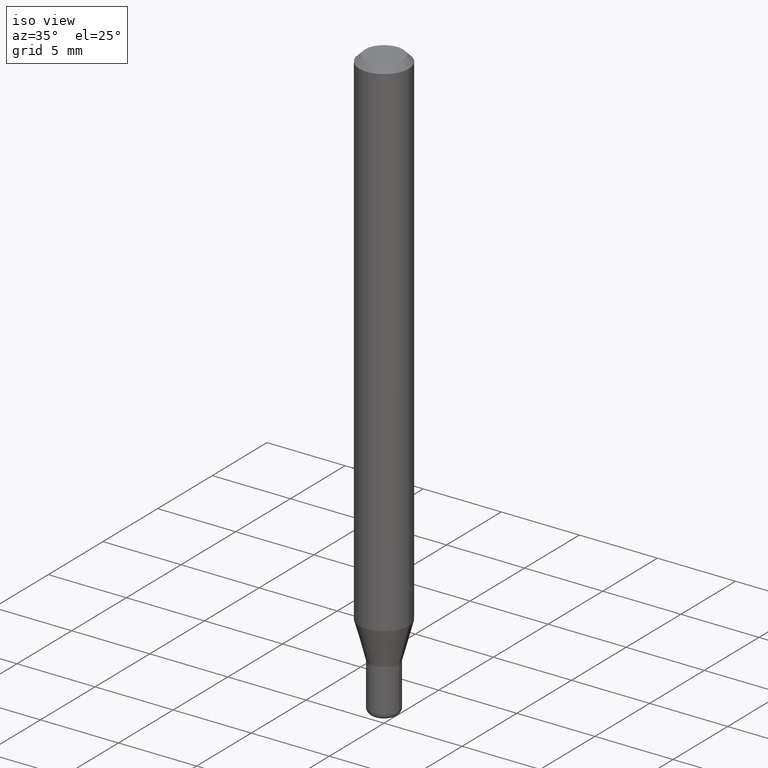
[diagram: clean part render]
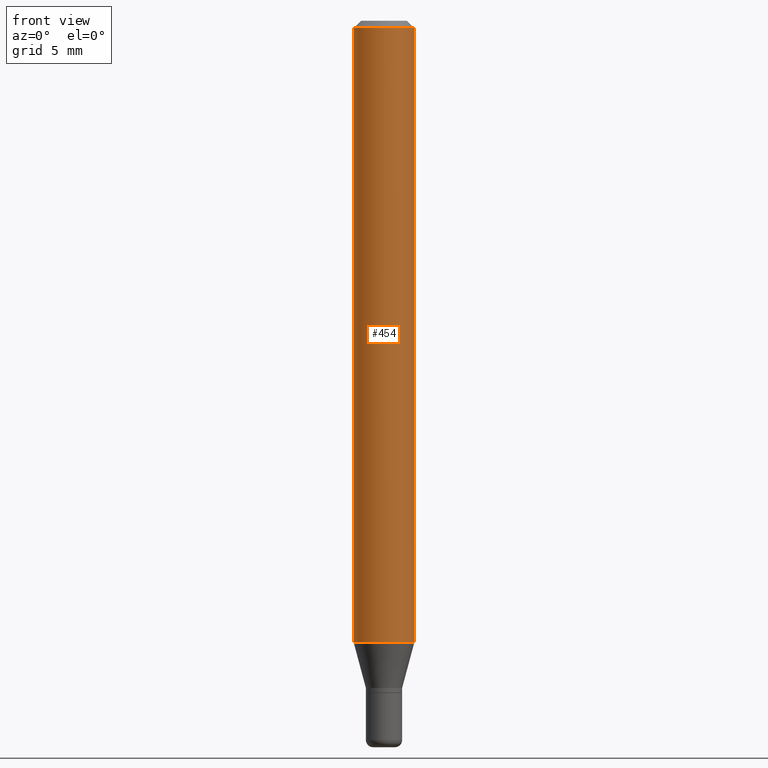
[diagram: tour spotlight — one face highlighted and labeled with its STEP entity id]
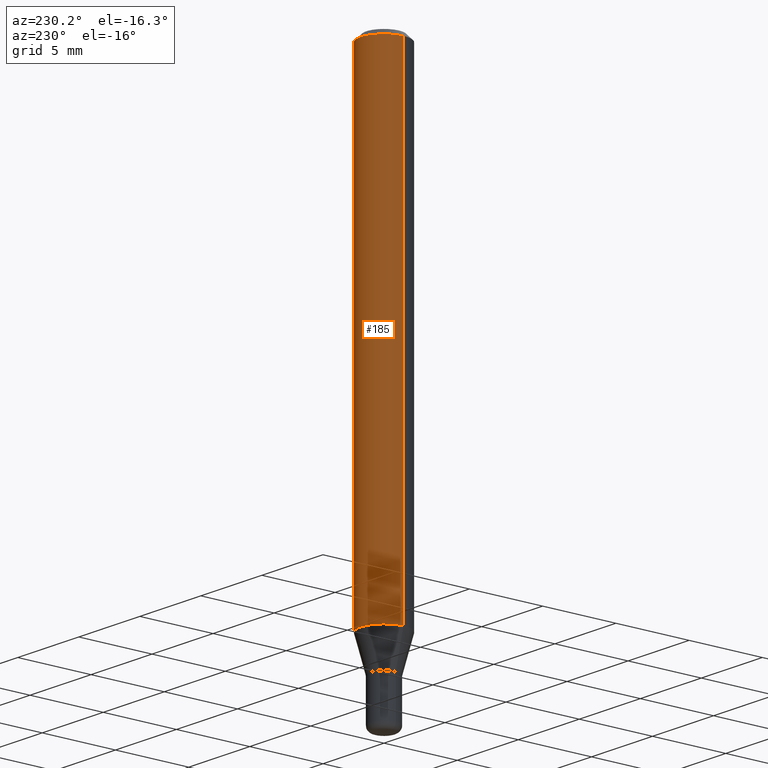
[diagram: tour spotlight — one face highlighted and labeled with its STEP entity id]
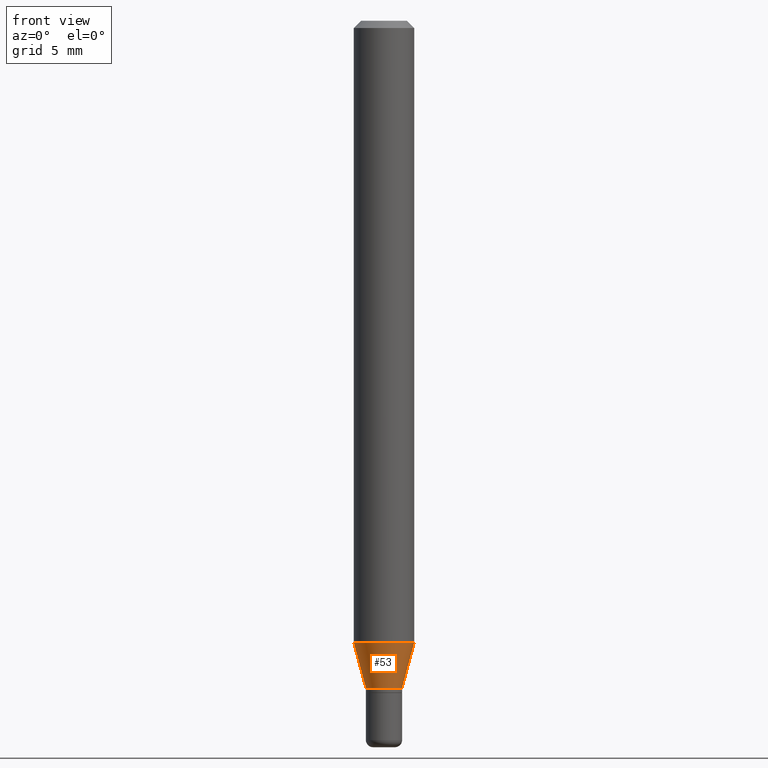
[diagram: tour spotlight — one face highlighted and labeled with its STEP entity id]
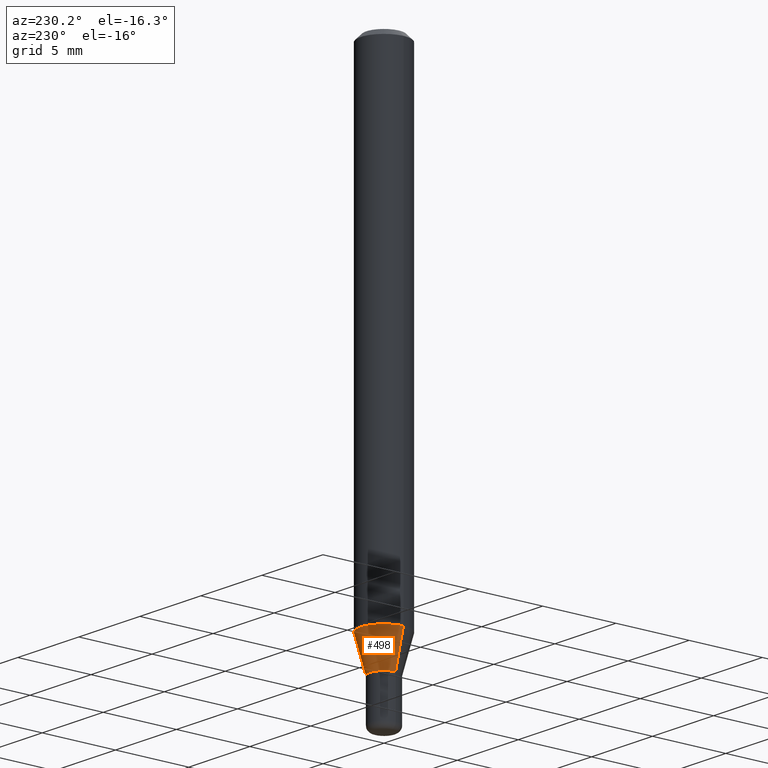
[diagram: tour spotlight — one face highlighted and labeled with its STEP entity id]
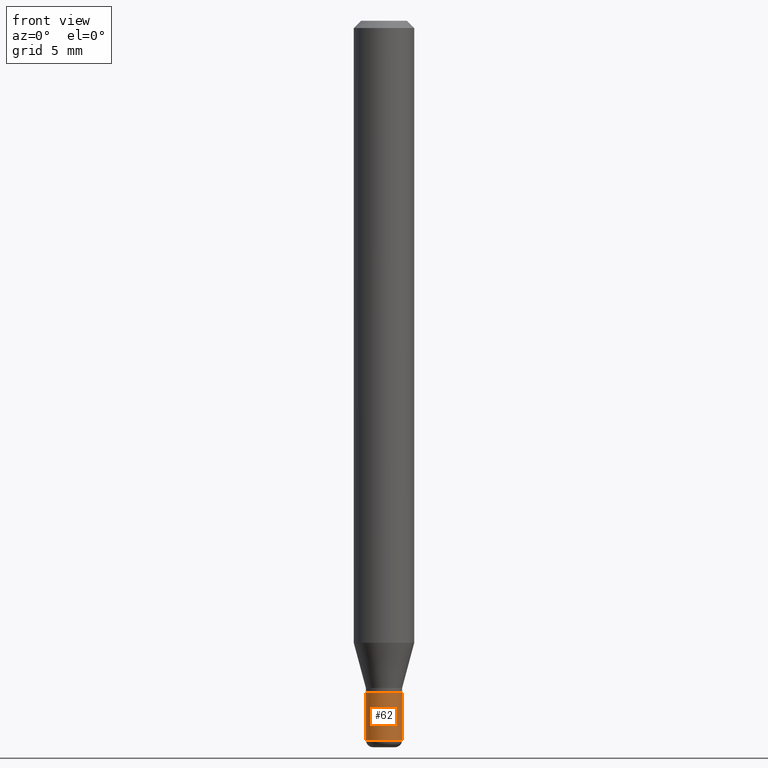
[diagram: tour spotlight — one face highlighted and labeled with its STEP entity id]
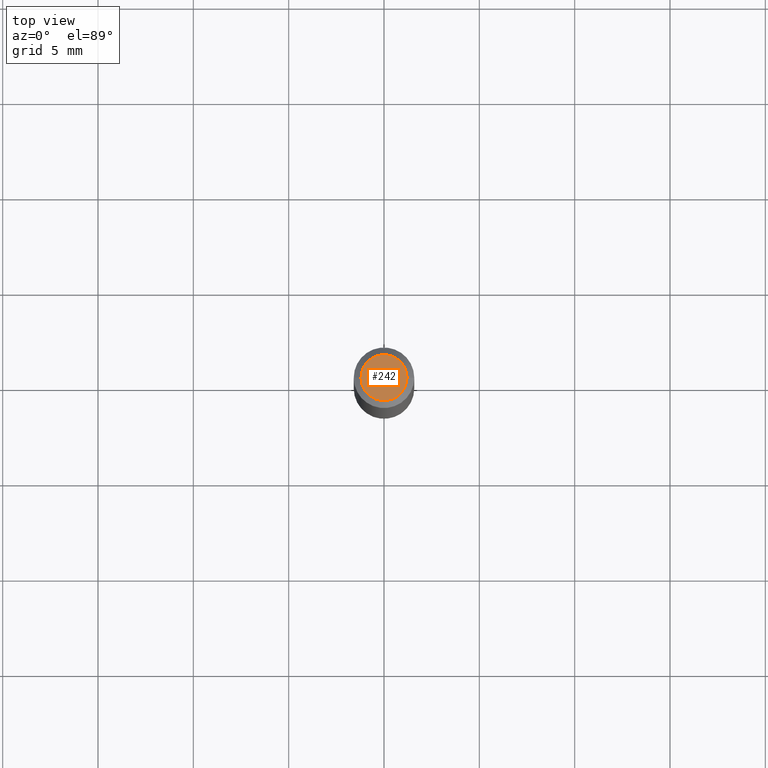
[diagram: tour spotlight — one face highlighted and labeled with its STEP entity id]
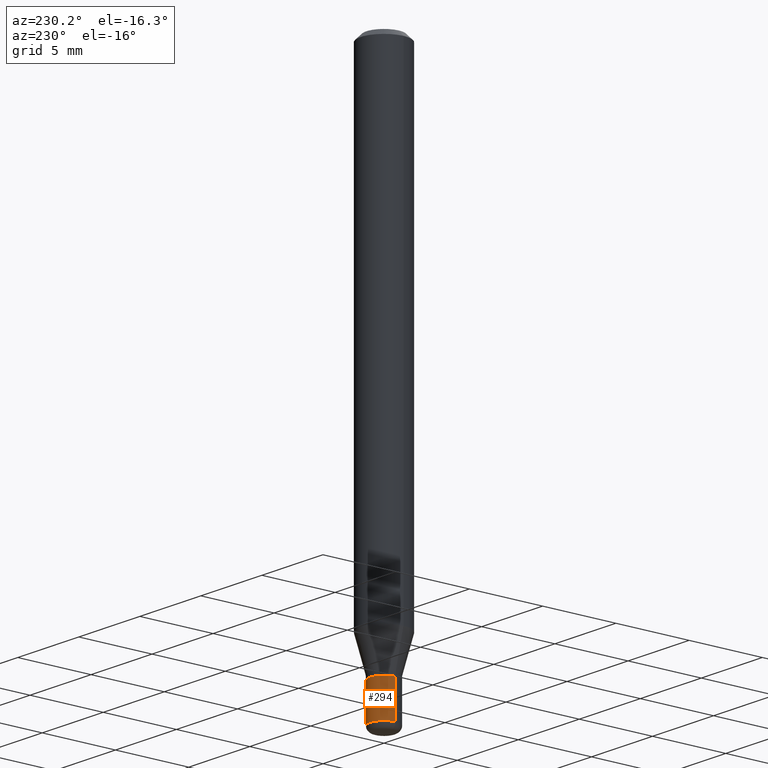
[diagram: tour spotlight — one face highlighted and labeled with its STEP entity id]
A machine part: a face-by-face anatomy tour. The part has 18 B-rep faces; the first image is the clean iso view, then the 7 largest visible faces are spotlighted one at a time (largest first), each with its STEP entity span.

Face 1 — front view, entity #454. In plain terms, the highlighted cylindrical surface (edge-blend (fillet) strip) has radius 1.5875 mm, axis along (-0, 0, 1).
Definition (entity closure, byte-faithful):
#3 = EDGE_CURVE ( 'NONE', #268, #397, #286, .T. ) ;
#13 = DIRECTION ( 'NONE',  ( 1.000000000000000000, -6.982962677686266711E-15, 4.876176775795935793E-29 ) ) ;
#23 = ORIENTED_EDGE ( 'NONE', *, *, #3, .T. ) ;
#55 = CARTESIAN_POINT ( 'NONE',  ( 3.668203209277632395E-31, -5.237222008264614861E-17, -0.01499999999999970281 ) ) ;
#69 = AXIS2_PLACEMENT_3D ( 'NONE', #315, #161, #483 ) ;
#70 = CARTESIAN_POINT ( 'NONE',  ( 0.06250000000000000000, -4.888073874380378612E-16, -0.01499999999999970281 ) ) ;
#77 = DIRECTION ( 'NONE',  ( -2.445468806185136877E-29, 3.491481338843145188E-15, 1.000000000000000000 ) ) ;
#82 = CARTESIAN_POINT ( 'NONE',  ( 0.06250000000000000000, -4.364351673553916694E-16, 3.047610484872459871E-30 ) ) ;
#96 = CIRCLE ( 'NONE', #69, 0.06250000000000000000 ) ;
#128 = ORIENTED_EDGE ( 'NONE', *, *, #347, .F. ) ;
#141 = EDGE_CURVE ( 'NONE', #364, #268, #96, .T. ) ;
#143 = DIRECTION ( 'NONE',  ( -2.445468806185136597E-29, 3.491481338843145583E-15, 1.000000000000000000 ) ) ;
#161 = DIRECTION ( 'NONE',  ( -2.445468806185136597E-29, 3.491481338843145583E-15, 1.000000000000000000 ) ) ;
#174 = DIRECTION ( 'NONE',  ( -2.445468806185136877E-29, 3.491481338843145188E-15, 1.000000000000000000 ) ) ;
#175 = VECTOR ( 'NONE', #174, 39.37007874015748143 ) ;
#176 = AXIS2_PLACEMENT_3D ( 'NONE', #422, #143, #13 ) ;
#179 = CARTESIAN_POINT ( 'NONE',  ( 0.06250000000000000000, -4.920191067855794599E-15, -1.284198729810778206 ) ) ;
#222 = VECTOR ( 'NONE', #77, 39.37007874015748143 ) ;
#241 = VERTEX_POINT ( 'NONE', #453 ) ;
#256 = DIRECTION ( 'NONE',  ( 1.000000000000000000, -6.982962677686266711E-15, 0.000000000000000000 ) ) ;
#261 = EDGE_CURVE ( 'NONE', #241, #397, #414, .T. ) ;
#268 = VERTEX_POINT ( 'NONE', #179 ) ;
#286 = LINE ( 'NONE', #82, #175 ) ;
#293 = ORIENTED_EDGE ( 'NONE', *, *, #261, .F. ) ;
#315 = CARTESIAN_POINT ( 'NONE',  ( 3.140467934694832795E-29, -4.483755900500402930E-15, -1.284198729810778206 ) ) ;
#345 = CYLINDRICAL_SURFACE ( 'NONE', #176, 0.06250000000000000000 ) ;
#347 = EDGE_CURVE ( 'NONE', #364, #241, #437, .T. ) ;
#364 = VERTEX_POINT ( 'NONE', #502 ) ;
#385 = FACE_OUTER_BOUND ( 'NONE', #392, .T. ) ;
#392 = EDGE_LOOP ( 'NONE', ( #128, #468, #23, #293 ) ) ;
#397 = VERTEX_POINT ( 'NONE', #70 ) ;
#414 = CIRCLE ( 'NONE', #456, 0.06250000000000000000 ) ;
#422 = CARTESIAN_POINT ( 'NONE',  ( 0.000000000000000000, 0.000000000000000000, 0.000000000000000000 ) ) ;
#437 = LINE ( 'NONE', #442, #222 ) ;
#442 = CARTESIAN_POINT ( 'NONE',  ( -0.06250000000000000000, 4.440892098500626162E-16, -3.074334431409316114E-30 ) ) ;
#453 = CARTESIAN_POINT ( 'NONE',  ( -0.06250000000000000000, -1.823974850441461797E-15, -0.01499999999999970281 ) ) ;
#454 = ADVANCED_FACE ( 'NONE', ( #385 ), #345, .T. ) ;
#456 = AXIS2_PLACEMENT_3D ( 'NONE', #55, #499, #256 ) ;
#468 = ORIENTED_EDGE ( 'NONE', *, *, #141, .T. ) ;
#483 = DIRECTION ( 'NONE',  ( 1.000000000000000000, -6.982962677686262766E-15, 0.000000000000000000 ) ) ;
#499 = DIRECTION ( 'NONE',  ( -2.445468806185136597E-29, 3.491481338843145583E-15, 1.000000000000000000 ) ) ;
#502 = CARTESIAN_POINT ( 'NONE',  ( -0.06250000000000000000, -4.039666690650340314E-15, -1.284198729810778206 ) ) ;

Face 2 — auxiliary view, entity #185. In plain terms, the highlighted cylindrical surface (edge-blend (fillet) strip) has radius 1.5875 mm, axis along (-0, 0, 1).
Definition (entity closure, byte-faithful):
#3 = EDGE_CURVE ( 'NONE', #268, #397, #286, .T. ) ;
#8 = ORIENTED_EDGE ( 'NONE', *, *, #173, .T. ) ;
#10 = EDGE_CURVE ( 'NONE', #397, #241, #246, .T. ) ;
#57 = AXIS2_PLACEMENT_3D ( 'NONE', #390, #401, #111 ) ;
#70 = CARTESIAN_POINT ( 'NONE',  ( 0.06250000000000000000, -4.888073874380378612E-16, -0.01499999999999970281 ) ) ;
#72 = DIRECTION ( 'NONE',  ( -2.445468806185136597E-29, 3.491481338843145583E-15, 1.000000000000000000 ) ) ;
#77 = DIRECTION ( 'NONE',  ( -2.445468806185136877E-29, 3.491481338843145188E-15, 1.000000000000000000 ) ) ;
#82 = CARTESIAN_POINT ( 'NONE',  ( 0.06250000000000000000, -4.364351673553916694E-16, 3.047610484872459871E-30 ) ) ;
#88 = AXIS2_PLACEMENT_3D ( 'NONE', #354, #72, #361 ) ;
#111 = DIRECTION ( 'NONE',  ( 1.000000000000000000, -6.982962677686266711E-15, 4.876176775795935793E-29 ) ) ;
#118 = ORIENTED_EDGE ( 'NONE', *, *, #347, .T. ) ;
#173 = EDGE_CURVE ( 'NONE', #268, #364, #205, .T. ) ;
#174 = DIRECTION ( 'NONE',  ( -2.445468806185136877E-29, 3.491481338843145188E-15, 1.000000000000000000 ) ) ;
#175 = VECTOR ( 'NONE', #174, 39.37007874015748143 ) ;
#179 = CARTESIAN_POINT ( 'NONE',  ( 0.06250000000000000000, -4.920191067855794599E-15, -1.284198729810778206 ) ) ;
#185 = ADVANCED_FACE ( 'NONE', ( #239 ), #517, .T. ) ;
#205 = CIRCLE ( 'NONE', #88, 0.06250000000000000000 ) ;
#211 = CARTESIAN_POINT ( 'NONE',  ( 3.668203209277632395E-31, -5.237222008264614861E-17, -0.01499999999999970281 ) ) ;
#222 = VECTOR ( 'NONE', #77, 39.37007874015748143 ) ;
#232 = ORIENTED_EDGE ( 'NONE', *, *, #3, .F. ) ;
#239 = FACE_OUTER_BOUND ( 'NONE', #373, .T. ) ;
#241 = VERTEX_POINT ( 'NONE', #453 ) ;
#246 = CIRCLE ( 'NONE', #427, 0.06250000000000000000 ) ;
#268 = VERTEX_POINT ( 'NONE', #179 ) ;
#286 = LINE ( 'NONE', #82, #175 ) ;
#292 = ORIENTED_EDGE ( 'NONE', *, *, #10, .F. ) ;
#330 = DIRECTION ( 'NONE',  ( 1.000000000000000000, -6.982962677686266711E-15, 0.000000000000000000 ) ) ;
#347 = EDGE_CURVE ( 'NONE', #364, #241, #437, .T. ) ;
#354 = CARTESIAN_POINT ( 'NONE',  ( 3.140467934694832795E-29, -4.483755900500402930E-15, -1.284198729810778206 ) ) ;
#361 = DIRECTION ( 'NONE',  ( 1.000000000000000000, -6.982962677686262766E-15, 0.000000000000000000 ) ) ;
#364 = VERTEX_POINT ( 'NONE', #502 ) ;
#367 = DIRECTION ( 'NONE',  ( -2.445468806185136597E-29, 3.491481338843145583E-15, 1.000000000000000000 ) ) ;
#373 = EDGE_LOOP ( 'NONE', ( #8, #118, #292, #232 ) ) ;
#390 = CARTESIAN_POINT ( 'NONE',  ( 0.000000000000000000, 0.000000000000000000, 0.000000000000000000 ) ) ;
#397 = VERTEX_POINT ( 'NONE', #70 ) ;
#401 = DIRECTION ( 'NONE',  ( -2.445468806185136597E-29, 3.491481338843145583E-15, 1.000000000000000000 ) ) ;
#427 = AXIS2_PLACEMENT_3D ( 'NONE', #211, #367, #330 ) ;
#437 = LINE ( 'NONE', #442, #222 ) ;
#442 = CARTESIAN_POINT ( 'NONE',  ( -0.06250000000000000000, 4.440892098500626162E-16, -3.074334431409316114E-30 ) ) ;
#453 = CARTESIAN_POINT ( 'NONE',  ( -0.06250000000000000000, -1.823974850441461797E-15, -0.01499999999999970281 ) ) ;
#502 = CARTESIAN_POINT ( 'NONE',  ( -0.06250000000000000000, -4.039666690650340314E-15, -1.284198729810778206 ) ) ;
#517 = CYLINDRICAL_SURFACE ( 'NONE', #57, 0.06250000000000000000 ) ;

Face 3 — front view, entity #53. In plain terms, the highlighted conical surface has half-angle 15 deg.
Definition (entity closure, byte-faithful):
#6 = VECTOR ( 'NONE', #492, 39.37007874015748143 ) ;
#15 = EDGE_CURVE ( 'NONE', #130, #268, #41, .T. ) ;
#17 = AXIS2_PLACEMENT_3D ( 'NONE', #243, #35, #156 ) ;
#35 = DIRECTION ( 'NONE',  ( -2.445468806185136597E-29, 3.491481338843145583E-15, 1.000000000000000000 ) ) ;
#41 = LINE ( 'NONE', #169, #6 ) ;
#53 = ADVANCED_FACE ( 'NONE', ( #366 ), #419, .T. ) ;
#68 = ORIENTED_EDGE ( 'NONE', *, *, #141, .F. ) ;
#69 = AXIS2_PLACEMENT_3D ( 'NONE', #315, #161, #483 ) ;
#95 = CARTESIAN_POINT ( 'NONE',  ( -0.03749999999999999861, -4.543062018346396613E-15, -1.377500000000000169 ) ) ;
#96 = CIRCLE ( 'NONE', #69, 0.06250000000000000000 ) ;
#103 = DIRECTION ( 'NONE',  ( 1.000000000000000000, -6.982962677686268288E-15, 0.000000000000000000 ) ) ;
#108 = ORIENTED_EDGE ( 'NONE', *, *, #15, .T. ) ;
#130 = VERTEX_POINT ( 'NONE', #192 ) ;
#134 = CARTESIAN_POINT ( 'NONE',  ( 3.368633280520026267E-29, -4.809515544256434025E-15, -1.377500000000000169 ) ) ;
#141 = EDGE_CURVE ( 'NONE', #364, #268, #96, .T. ) ;
#156 = DIRECTION ( 'NONE',  ( 1.000000000000000000, -6.982962677686268288E-15, 0.000000000000000000 ) ) ;
#159 = VECTOR ( 'NONE', #484, 39.37007874015748143 ) ;
#161 = DIRECTION ( 'NONE',  ( -2.445468806185136597E-29, 3.491481338843145583E-15, 1.000000000000000000 ) ) ;
#169 = CARTESIAN_POINT ( 'NONE',  ( 0.03749999999999999861, -5.071376644669669027E-15, -1.377500000000000169 ) ) ;
#170 = CIRCLE ( 'NONE', #214, 0.03749999999999999861 ) ;
#179 = CARTESIAN_POINT ( 'NONE',  ( 0.06250000000000000000, -4.920191067855794599E-15, -1.284198729810778206 ) ) ;
#192 = CARTESIAN_POINT ( 'NONE',  ( 0.03749999999999999861, -5.071376644669669027E-15, -1.377500000000000169 ) ) ;
#212 = EDGE_CURVE ( 'NONE', #488, #364, #327, .T. ) ;
#214 = AXIS2_PLACEMENT_3D ( 'NONE', #134, #462, #103 ) ;
#243 = CARTESIAN_POINT ( 'NONE',  ( 3.368633280520026267E-29, -4.809515544256434025E-15, -1.377500000000000169 ) ) ;
#249 = EDGE_CURVE ( 'NONE', #488, #130, #170, .T. ) ;
#251 = ORIENTED_EDGE ( 'NONE', *, *, #249, .T. ) ;
#268 = VERTEX_POINT ( 'NONE', #179 ) ;
#315 = CARTESIAN_POINT ( 'NONE',  ( 3.140467934694832795E-29, -4.483755900500402930E-15, -1.284198729810778206 ) ) ;
#327 = LINE ( 'NONE', #95, #159 ) ;
#364 = VERTEX_POINT ( 'NONE', #502 ) ;
#366 = FACE_OUTER_BOUND ( 'NONE', #507, .T. ) ;
#378 = CARTESIAN_POINT ( 'NONE',  ( -0.03749999999999999861, -4.291364354498368463E-15, -1.377500000000000169 ) ) ;
#409 = ORIENTED_EDGE ( 'NONE', *, *, #212, .F. ) ;
#419 = CONICAL_SURFACE ( 'NONE', #17, 0.03749999999999999861, 0.2617993877991490193 ) ;
#462 = DIRECTION ( 'NONE',  ( -2.445468806185136597E-29, 3.491481338843145583E-15, 1.000000000000000000 ) ) ;
#483 = DIRECTION ( 'NONE',  ( 1.000000000000000000, -6.982962677686262766E-15, 0.000000000000000000 ) ) ;
#484 = DIRECTION ( 'NONE',  ( -0.2588190451025203509, 5.211531920934543942E-15, 0.9659258262890684232 ) ) ;
#488 = VERTEX_POINT ( 'NONE', #378 ) ;
#492 = DIRECTION ( 'NONE',  ( 0.2588190451025203509, 1.565188264969630053E-15, 0.9659258262890684232 ) ) ;
#502 = CARTESIAN_POINT ( 'NONE',  ( -0.06250000000000000000, -4.039666690650340314E-15, -1.284198729810778206 ) ) ;
#507 = EDGE_LOOP ( 'NONE', ( #409, #251, #108, #68 ) ) ;

Face 4 — auxiliary view, entity #498. In plain terms, the highlighted conical surface has half-angle 15 deg.
Definition (entity closure, byte-faithful):
#6 = VECTOR ( 'NONE', #492, 39.37007874015748143 ) ;
#15 = EDGE_CURVE ( 'NONE', #130, #268, #41, .T. ) ;
#41 = LINE ( 'NONE', #169, #6 ) ;
#50 = CONICAL_SURFACE ( 'NONE', #97, 0.03749999999999999861, 0.2617993877991490193 ) ;
#54 = FACE_OUTER_BOUND ( 'NONE', #478, .T. ) ;
#60 = DIRECTION ( 'NONE',  ( -2.445468806185136597E-29, 3.491481338843145583E-15, 1.000000000000000000 ) ) ;
#65 = DIRECTION ( 'NONE',  ( 1.000000000000000000, -6.982962677686268288E-15, 0.000000000000000000 ) ) ;
#72 = DIRECTION ( 'NONE',  ( -2.445468806185136597E-29, 3.491481338843145583E-15, 1.000000000000000000 ) ) ;
#88 = AXIS2_PLACEMENT_3D ( 'NONE', #354, #72, #361 ) ;
#95 = CARTESIAN_POINT ( 'NONE',  ( -0.03749999999999999861, -4.543062018346396613E-15, -1.377500000000000169 ) ) ;
#97 = AXIS2_PLACEMENT_3D ( 'NONE', #136, #60, #177 ) ;
#119 = CIRCLE ( 'NONE', #384, 0.03749999999999999861 ) ;
#130 = VERTEX_POINT ( 'NONE', #192 ) ;
#136 = CARTESIAN_POINT ( 'NONE',  ( 3.368633280520026267E-29, -4.809515544256434025E-15, -1.377500000000000169 ) ) ;
#159 = VECTOR ( 'NONE', #484, 39.37007874015748143 ) ;
#169 = CARTESIAN_POINT ( 'NONE',  ( 0.03749999999999999861, -5.071376644669669027E-15, -1.377500000000000169 ) ) ;
#173 = EDGE_CURVE ( 'NONE', #268, #364, #205, .T. ) ;
#177 = DIRECTION ( 'NONE',  ( 1.000000000000000000, -6.982962677686268288E-15, 0.000000000000000000 ) ) ;
#179 = CARTESIAN_POINT ( 'NONE',  ( 0.06250000000000000000, -4.920191067855794599E-15, -1.284198729810778206 ) ) ;
#192 = CARTESIAN_POINT ( 'NONE',  ( 0.03749999999999999861, -5.071376644669669027E-15, -1.377500000000000169 ) ) ;
#204 = ORIENTED_EDGE ( 'NONE', *, *, #15, .F. ) ;
#205 = CIRCLE ( 'NONE', #88, 0.06250000000000000000 ) ;
#212 = EDGE_CURVE ( 'NONE', #488, #364, #327, .T. ) ;
#228 = ORIENTED_EDGE ( 'NONE', *, *, #212, .T. ) ;
#234 = CARTESIAN_POINT ( 'NONE',  ( 3.368633280520026267E-29, -4.809515544256434025E-15, -1.377500000000000169 ) ) ;
#268 = VERTEX_POINT ( 'NONE', #179 ) ;
#274 = ORIENTED_EDGE ( 'NONE', *, *, #377, .T. ) ;
#327 = LINE ( 'NONE', #95, #159 ) ;
#333 = ORIENTED_EDGE ( 'NONE', *, *, #173, .F. ) ;
#354 = CARTESIAN_POINT ( 'NONE',  ( 3.140467934694832795E-29, -4.483755900500402930E-15, -1.284198729810778206 ) ) ;
#361 = DIRECTION ( 'NONE',  ( 1.000000000000000000, -6.982962677686262766E-15, 0.000000000000000000 ) ) ;
#364 = VERTEX_POINT ( 'NONE', #502 ) ;
#377 = EDGE_CURVE ( 'NONE', #130, #488, #119, .T. ) ;
#378 = CARTESIAN_POINT ( 'NONE',  ( -0.03749999999999999861, -4.291364354498368463E-15, -1.377500000000000169 ) ) ;
#384 = AXIS2_PLACEMENT_3D ( 'NONE', #234, #510, #65 ) ;
#478 = EDGE_LOOP ( 'NONE', ( #274, #228, #333, #204 ) ) ;
#484 = DIRECTION ( 'NONE',  ( -0.2588190451025203509, 5.211531920934543942E-15, 0.9659258262890684232 ) ) ;
#488 = VERTEX_POINT ( 'NONE', #378 ) ;
#492 = DIRECTION ( 'NONE',  ( 0.2588190451025203509, 1.565188264969630053E-15, 0.9659258262890684232 ) ) ;
#498 = ADVANCED_FACE ( 'NONE', ( #54 ), #50, .T. ) ;
#502 = CARTESIAN_POINT ( 'NONE',  ( -0.06250000000000000000, -4.039666690650340314E-15, -1.284198729810778206 ) ) ;
#510 = DIRECTION ( 'NONE',  ( -2.445468806185136597E-29, 3.491481338843145583E-15, 1.000000000000000000 ) ) ;

Face 5 — front view, entity #62. In plain terms, the highlighted cylindrical surface (edge-blend (fillet) strip) has radius 0.9525 mm, axis along (-0, 0, 1).
Definition (entity closure, byte-faithful):
#33 = CARTESIAN_POINT ( 'NONE',  ( 0.000000000000000000, 0.000000000000000000, 0.000000000000000000 ) ) ;
#44 = VECTOR ( 'NONE', #470, 39.37007874015748143 ) ;
#52 = CARTESIAN_POINT ( 'NONE',  ( -0.03749999999999999861, -4.748186547003430777E-15, -1.387500000000000178 ) ) ;
#62 = ADVANCED_FACE ( 'NONE', ( #350 ), #479, .T. ) ;
#75 = VERTEX_POINT ( 'NONE', #439 ) ;
#78 = LINE ( 'NONE', #127, #44 ) ;
#100 = DIRECTION ( 'NONE',  ( 1.000000000000000000, -6.982962677686268288E-15, 0.000000000000000000 ) ) ;
#127 = CARTESIAN_POINT ( 'NONE',  ( 0.03749999999999999167, -2.618611004132349523E-16, 1.828566290923475572E-30 ) ) ;
#164 = CARTESIAN_POINT ( 'NONE',  ( -0.03749999999999999167, -4.748186547003430777E-15, -1.485000000000000098 ) ) ;
#166 = EDGE_CURVE ( 'NONE', #75, #403, #78, .T. ) ;
#184 = DIRECTION ( 'NONE',  ( -2.445468806185136597E-29, 3.491481338843145583E-15, 1.000000000000000000 ) ) ;
#193 = EDGE_CURVE ( 'NONE', #237, #75, #310, .T. ) ;
#194 = AXIS2_PLACEMENT_3D ( 'NONE', #33, #404, #322 ) ;
#198 = DIRECTION ( 'NONE',  ( 1.000000000000000000, -6.982962677686269866E-15, 0.000000000000000000 ) ) ;
#202 = DIRECTION ( 'NONE',  ( -2.445468806185136597E-29, 3.491481338843145583E-15, 1.000000000000000000 ) ) ;
#207 = EDGE_CURVE ( 'NONE', #237, #329, #508, .T. ) ;
#216 = ORIENTED_EDGE ( 'NONE', *, *, #207, .F. ) ;
#237 = VERTEX_POINT ( 'NONE', #164 ) ;
#257 = AXIS2_PLACEMENT_3D ( 'NONE', #272, #202, #198 ) ;
#271 = CARTESIAN_POINT ( 'NONE',  ( 0.03749999999999999861, -5.106291458058100676E-15, -1.387500000000000178 ) ) ;
#272 = CARTESIAN_POINT ( 'NONE',  ( 3.631521177184928138E-29, -5.184849788182071492E-15, -1.485000000000000098 ) ) ;
#275 = DIRECTION ( 'NONE',  ( -2.445468806185136877E-29, 3.491481338843145188E-15, 1.000000000000000000 ) ) ;
#310 = CIRCLE ( 'NONE', #257, 0.03749999999999999167 ) ;
#317 = CARTESIAN_POINT ( 'NONE',  ( -0.03749999999999999167, 2.664535259100375105E-16, -1.844600658845589458E-30 ) ) ;
#322 = DIRECTION ( 'NONE',  ( 1.000000000000000000, -6.982962677686266711E-15, 4.876176775795935793E-29 ) ) ;
#325 = ORIENTED_EDGE ( 'NONE', *, *, #193, .T. ) ;
#329 = VERTEX_POINT ( 'NONE', #52 ) ;
#334 = ORIENTED_EDGE ( 'NONE', *, *, #480, .F. ) ;
#350 = FACE_OUTER_BOUND ( 'NONE', #490, .T. ) ;
#369 = ORIENTED_EDGE ( 'NONE', *, *, #166, .T. ) ;
#403 = VERTEX_POINT ( 'NONE', #271 ) ;
#404 = DIRECTION ( 'NONE',  ( -2.445468806185136597E-29, 3.491481338843145583E-15, 1.000000000000000000 ) ) ;
#439 = CARTESIAN_POINT ( 'NONE',  ( 0.03749999999999999167, -5.446710888595306494E-15, -1.485000000000000098 ) ) ;
#457 = AXIS2_PLACEMENT_3D ( 'NONE', #464, #184, #100 ) ;
#460 = CIRCLE ( 'NONE', #457, 0.03749999999999999861 ) ;
#464 = CARTESIAN_POINT ( 'NONE',  ( 3.393087968581877252E-29, -4.844430357644865674E-15, -1.387500000000000178 ) ) ;
#470 = DIRECTION ( 'NONE',  ( -2.445468806185136877E-29, 3.491481338843145188E-15, 1.000000000000000000 ) ) ;
#479 = CYLINDRICAL_SURFACE ( 'NONE', #194, 0.03749999999999999167 ) ;
#480 = EDGE_CURVE ( 'NONE', #329, #403, #460, .T. ) ;
#490 = EDGE_LOOP ( 'NONE', ( #216, #325, #369, #334 ) ) ;
#497 = VECTOR ( 'NONE', #275, 39.37007874015748143 ) ;
#508 = LINE ( 'NONE', #317, #497 ) ;

Face 6 — top view, entity #242. In plain terms, the highlighted planar face has unit normal (0, -0, -1).
Definition (entity closure, byte-faithful):
#16 = DIRECTION ( 'NONE',  ( -2.445468806185136597E-29, 3.491481338843145583E-15, 1.000000000000000000 ) ) ;
#26 = EDGE_LOOP ( 'NONE', ( #168, #518 ) ) ;
#27 = CIRCLE ( 'NONE', #341, 0.04750000000000000749 ) ;
#48 = CARTESIAN_POINT ( 'NONE',  ( 0.04750000000000000749, -4.035134999187568762E-16, 2.731847993664288856E-16 ) ) ;
#83 = AXIS2_PLACEMENT_3D ( 'NONE', #220, #94, #263 ) ;
#94 = DIRECTION ( 'NONE',  ( 2.438088387897960049E-29, -3.491481338843145188E-15, -1.000000000000000000 ) ) ;
#101 = PLANE ( 'NONE',  #83 ) ;
#139 = DIRECTION ( 'NONE',  ( 1.000000000000000000, -6.982962677686266711E-15, 4.852736867747365086E-29 ) ) ;
#140 = DIRECTION ( 'NONE',  ( 1.000000000000000000, -6.982962677686266711E-15, 4.852736867747365086E-29 ) ) ;
#155 = VERTEX_POINT ( 'NONE', #165 ) ;
#165 = CARTESIAN_POINT ( 'NONE',  ( -0.04750000000000000749, 3.578768372314221353E-16, 2.731847993664239060E-16 ) ) ;
#168 = ORIENTED_EDGE ( 'NONE', *, *, #253, .T. ) ;
#171 = AXIS2_PLACEMENT_3D ( 'NONE', #463, #501, #140 ) ;
#220 = CARTESIAN_POINT ( 'NONE',  ( 3.316907271900976589E-16, 0.04750000000000000749, -2.925296391183627249E-17 ) ) ;
#242 = ADVANCED_FACE ( 'NONE', ( #265 ), #101, .F. ) ;
#253 = EDGE_CURVE ( 'NONE', #155, #289, #27, .T. ) ;
#263 = DIRECTION ( 'NONE',  ( -1.000000000000000000, 6.982962677686265922E-15, -4.876176775795935793E-29 ) ) ;
#265 = FACE_OUTER_BOUND ( 'NONE', #26, .T. ) ;
#289 = VERTEX_POINT ( 'NONE', #48 ) ;
#299 = CARTESIAN_POINT ( 'NONE',  ( -6.680649051745406845E-45, 9.538196290434862081E-31, 2.731847993664263218E-16 ) ) ;
#341 = AXIS2_PLACEMENT_3D ( 'NONE', #299, #16, #139 ) ;
#433 = EDGE_CURVE ( 'NONE', #289, #155, #487, .T. ) ;
#463 = CARTESIAN_POINT ( 'NONE',  ( -6.680649051745406845E-45, 9.538196290434862081E-31, 2.731847993664263218E-16 ) ) ;
#487 = CIRCLE ( 'NONE', #171, 0.04750000000000000749 ) ;
#501 = DIRECTION ( 'NONE',  ( -2.445468806185136597E-29, 3.491481338843145583E-15, 1.000000000000000000 ) ) ;
#518 = ORIENTED_EDGE ( 'NONE', *, *, #433, .T. ) ;

Face 7 — auxiliary view, entity #294. In plain terms, the highlighted cylindrical surface (edge-blend (fillet) strip) has radius 0.9525 mm, axis along (-0, 0, 1).
Definition (entity closure, byte-faithful):
#12 = CARTESIAN_POINT ( 'NONE',  ( 0.000000000000000000, 0.000000000000000000, 0.000000000000000000 ) ) ;
#44 = VECTOR ( 'NONE', #470, 39.37007874015748143 ) ;
#52 = CARTESIAN_POINT ( 'NONE',  ( -0.03749999999999999861, -4.748186547003430777E-15, -1.387500000000000178 ) ) ;
#58 = DIRECTION ( 'NONE',  ( 1.000000000000000000, -6.982962677686268288E-15, 0.000000000000000000 ) ) ;
#75 = VERTEX_POINT ( 'NONE', #439 ) ;
#78 = LINE ( 'NONE', #127, #44 ) ;
#89 = CIRCLE ( 'NONE', #197, 0.03749999999999999861 ) ;
#109 = DIRECTION ( 'NONE',  ( 1.000000000000000000, -6.982962677686269866E-15, 0.000000000000000000 ) ) ;
#127 = CARTESIAN_POINT ( 'NONE',  ( 0.03749999999999999167, -2.618611004132349523E-16, 1.828566290923475572E-30 ) ) ;
#147 = ORIENTED_EDGE ( 'NONE', *, *, #166, .F. ) ;
#164 = CARTESIAN_POINT ( 'NONE',  ( -0.03749999999999999167, -4.748186547003430777E-15, -1.485000000000000098 ) ) ;
#166 = EDGE_CURVE ( 'NONE', #75, #403, #78, .T. ) ;
#191 = CARTESIAN_POINT ( 'NONE',  ( 3.631521177184928138E-29, -5.184849788182071492E-15, -1.485000000000000098 ) ) ;
#197 = AXIS2_PLACEMENT_3D ( 'NONE', #226, #387, #58 ) ;
#207 = EDGE_CURVE ( 'NONE', #237, #329, #508, .T. ) ;
#226 = CARTESIAN_POINT ( 'NONE',  ( 3.393087968581877252E-29, -4.844430357644865674E-15, -1.387500000000000178 ) ) ;
#229 = DIRECTION ( 'NONE',  ( -2.445468806185136597E-29, 3.491481338843145583E-15, 1.000000000000000000 ) ) ;
#237 = VERTEX_POINT ( 'NONE', #164 ) ;
#270 = EDGE_LOOP ( 'NONE', ( #316, #430, #313, #147 ) ) ;
#271 = CARTESIAN_POINT ( 'NONE',  ( 0.03749999999999999861, -5.106291458058100676E-15, -1.387500000000000178 ) ) ;
#275 = DIRECTION ( 'NONE',  ( -2.445468806185136877E-29, 3.491481338843145188E-15, 1.000000000000000000 ) ) ;
#294 = ADVANCED_FACE ( 'NONE', ( #306 ), #376, .T. ) ;
#306 = FACE_OUTER_BOUND ( 'NONE', #270, .T. ) ;
#313 = ORIENTED_EDGE ( 'NONE', *, *, #413, .F. ) ;
#316 = ORIENTED_EDGE ( 'NONE', *, *, #386, .T. ) ;
#317 = CARTESIAN_POINT ( 'NONE',  ( -0.03749999999999999167, 2.664535259100375105E-16, -1.844600658845589458E-30 ) ) ;
#329 = VERTEX_POINT ( 'NONE', #52 ) ;
#372 = CIRCLE ( 'NONE', #405, 0.03749999999999999167 ) ;
#376 = CYLINDRICAL_SURFACE ( 'NONE', #515, 0.03749999999999999167 ) ;
#386 = EDGE_CURVE ( 'NONE', #75, #237, #372, .T. ) ;
#387 = DIRECTION ( 'NONE',  ( -2.445468806185136597E-29, 3.491481338843145583E-15, 1.000000000000000000 ) ) ;
#403 = VERTEX_POINT ( 'NONE', #271 ) ;
#405 = AXIS2_PLACEMENT_3D ( 'NONE', #191, #229, #109 ) ;
#413 = EDGE_CURVE ( 'NONE', #403, #329, #89, .T. ) ;
#430 = ORIENTED_EDGE ( 'NONE', *, *, #207, .T. ) ;
#439 = CARTESIAN_POINT ( 'NONE',  ( 0.03749999999999999167, -5.446710888595306494E-15, -1.485000000000000098 ) ) ;
#470 = DIRECTION ( 'NONE',  ( -2.445468806185136877E-29, 3.491481338843145188E-15, 1.000000000000000000 ) ) ;
#495 = DIRECTION ( 'NONE',  ( -2.445468806185136597E-29, 3.491481338843145583E-15, 1.000000000000000000 ) ) ;
#496 = DIRECTION ( 'NONE',  ( 1.000000000000000000, -6.982962677686266711E-15, 4.876176775795935793E-29 ) ) ;
#497 = VECTOR ( 'NONE', #275, 39.37007874015748143 ) ;
#508 = LINE ( 'NONE', #317, #497 ) ;
#515 = AXIS2_PLACEMENT_3D ( 'NONE', #12, #495, #496 ) ;